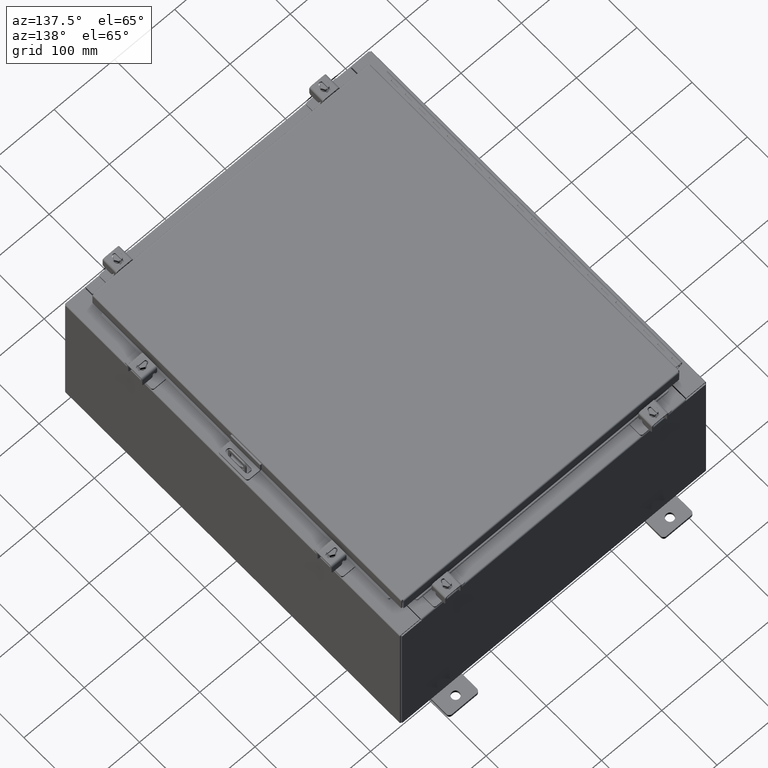
[diagram: clean part render]
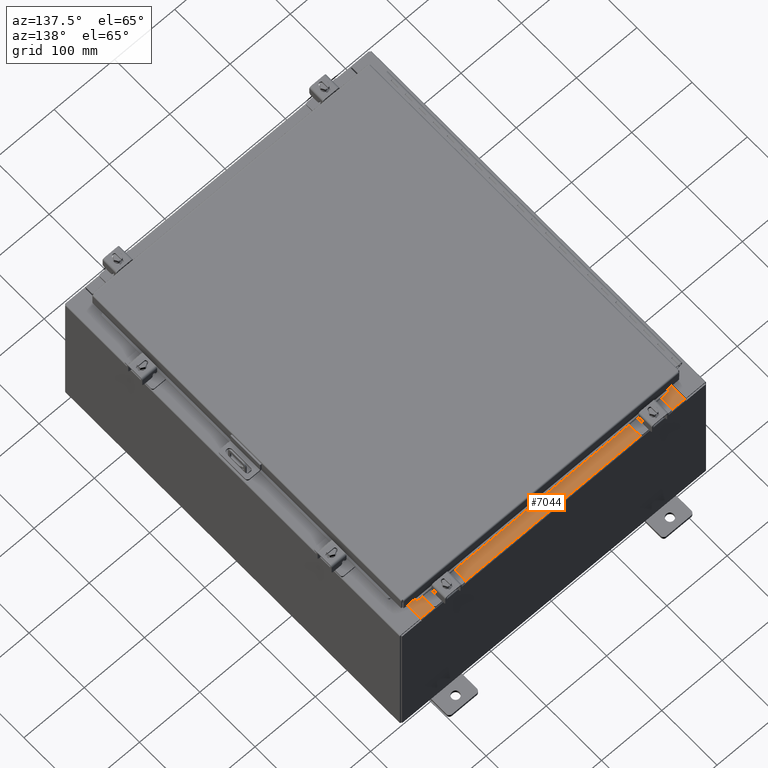
[diagram: same view with one face highlighted and labeled with its STEP entity id]
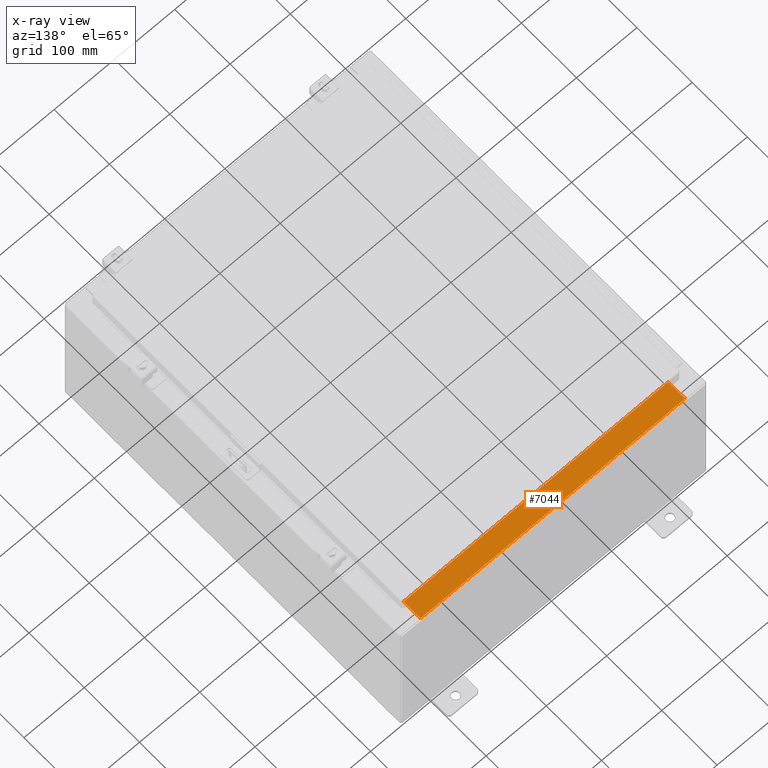
[diagram: x-ray of the same camera — body ghosted, the highlighted face saturated]
A machine part, auxiliary view. The second image highlights one B-rep face of the part: STEP entity #7044.
The next image is the same camera in x-ray: the body ghosted, the highlighted face saturated — about 0% of this face is hidden behind the body in this view.
In plain terms, the highlighted planar face has unit normal (0, 0, 1).
Its self-contained STEP definition (entity closure, byte-faithful):
#1522 = EDGE_LOOP ( 'NONE', ( #14600, #15745, #16499, #18852 ) ) ;
#2652 = EDGE_CURVE ( 'NONE', #14400, #16314, #31212, .T. ) ;
#2666 = DIRECTION ( 'NONE',  ( -1.000000000000000000, 0.0000000000000000000, 0.0000000000000000000 ) ) ;
#2698 = CARTESIAN_POINT ( 'NONE',  ( 8.637200000000000000, -1.287299999999999900, 5.000000000000003600 ) ) ;
#3992 = CARTESIAN_POINT ( 'NONE',  ( 8.637200000000000000, -0.08770000000000047200, 5.000000000000000000 ) ) ;
#7044 = ADVANCED_FACE ( 'NONE', ( #10672 ), #18666, .T. ) ;
#9095 = LINE ( 'NONE', #28925, #15005 ) ;
#10197 = VERTEX_POINT ( 'NONE', #3992 ) ;
#10672 = FACE_OUTER_BOUND ( 'NONE', #1522, .T. ) ;
#12201 = EDGE_CURVE ( 'NONE', #10197, #31677, #9095, .T. ) ;
#12298 = DIRECTION ( 'NONE',  ( -0.0000000000000000000, -1.000000000000000000, 3.566381192773190000E-015 ) ) ;
#13725 = VECTOR ( 'NONE', #16297, 39.37007874015748100 ) ;
#13996 = LINE ( 'NONE', #29775, #19890 ) ;
#14400 = VERTEX_POINT ( 'NONE', #32294 ) ;
#14600 = ORIENTED_EDGE ( 'NONE', *, *, #16800, .F. ) ;
#15005 = VECTOR ( 'NONE', #27715, 39.37007874015748100 ) ;
#15745 = ORIENTED_EDGE ( 'NONE', *, *, #2652, .F. ) ;
#16297 = DIRECTION ( 'NONE',  ( -0.0000000000000000000, 1.000000000000000000, -3.566381192773190000E-015 ) ) ;
#16314 = VERTEX_POINT ( 'NONE', #32453 ) ;
#16499 = ORIENTED_EDGE ( 'NONE', *, *, #23758, .F. ) ;
#16520 = CARTESIAN_POINT ( 'NONE',  ( -8.637200000000000000, -0.07469999999999973900, 5.000000000000000000 ) ) ;
#16800 = EDGE_CURVE ( 'NONE', #16314, #31677, #25522, .T. ) ;
#18444 = DIRECTION ( 'NONE',  ( 0.0000000000000000000, -1.000000000000000000, 3.566381192773190000E-015 ) ) ;
#18478 = DIRECTION ( 'NONE',  ( 0.0000000000000000000, 3.566381192773190000E-015, 1.000000000000000000 ) ) ;
#18666 = PLANE ( 'NONE',  #21331 ) ;
#18714 = VECTOR ( 'NONE', #2666, 39.37007874015748100 ) ;
#18726 = CARTESIAN_POINT ( 'NONE',  ( 0.0000000000000000000, 1.782631094477737600E-014, 5.000000000000000000 ) ) ;
#18852 = ORIENTED_EDGE ( 'NONE', *, *, #12201, .T. ) ;
#19772 = CARTESIAN_POINT ( 'NONE',  ( -8.637200000000000000, -0.08770000000000081900, 5.000000000000000000 ) ) ;
#19890 = VECTOR ( 'NONE', #12298, 39.37007874015748100 ) ;
#21331 = AXIS2_PLACEMENT_3D ( 'NONE', #18726, #18478, #18444 ) ;
#23758 = EDGE_CURVE ( 'NONE', #10197, #14400, #13996, .T. ) ;
#25522 = LINE ( 'NONE', #16520, #13725 ) ;
#27715 = DIRECTION ( 'NONE',  ( -1.000000000000000000, -6.325772226333218300E-017, 2.256011509776178200E-031 ) ) ;
#28925 = CARTESIAN_POINT ( 'NONE',  ( 5.547702242495411600E-018, -0.08770000000000081900, 5.000000000000000000 ) ) ;
#29775 = CARTESIAN_POINT ( 'NONE',  ( 8.637200000000000000, -1.300299999999999800, 5.000000000000004400 ) ) ;
#31212 = LINE ( 'NONE', #2698, #18714 ) ;
#31677 = VERTEX_POINT ( 'NONE', #19772 ) ;
#32294 = CARTESIAN_POINT ( 'NONE',  ( 8.637200000000000000, -1.287299999999999900, 5.000000000000004400 ) ) ;
#32453 = CARTESIAN_POINT ( 'NONE',  ( -8.637200000000000000, -1.287299999999999200, 5.000000000000004400 ) ) ;